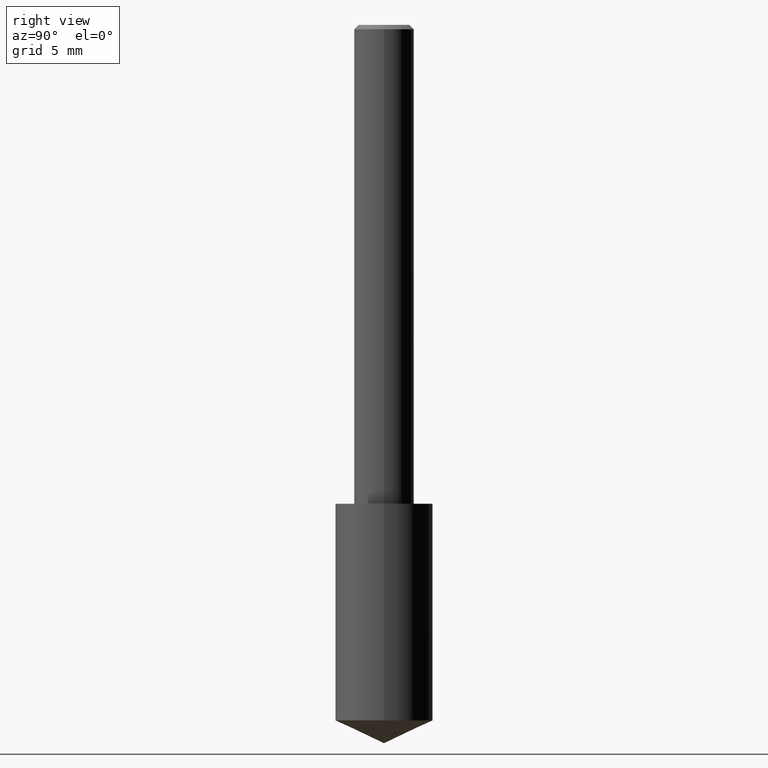
[diagram: clean part render]
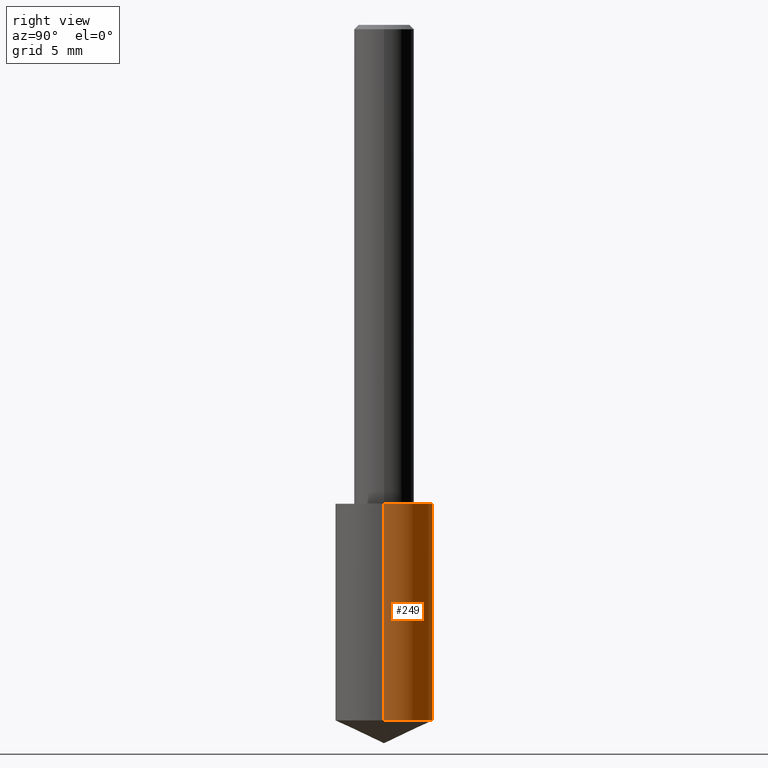
[diagram: same view with one face highlighted and labeled with its STEP entity id]
A machine part, right view. The second image highlights one B-rep face of the part: STEP entity #249.
In plain terms, the highlighted cylindrical surface (partial cylindrical patch) has radius 2.5908 mm, axis along (-0, 0, 1).
Its self-contained STEP definition (entity closure, byte-faithful):
#8 = DIRECTION ( 'NONE',  ( 1.000000000000000000, -6.982962677686266711E-15, 0.000000000000000000 ) ) ;
#9 = CARTESIAN_POINT ( 'NONE',  ( -0.1019999999999999796, -4.346401760155420845E-15, -1.452436618868190976 ) ) ;
#13 = ORIENTED_EDGE ( 'NONE', *, *, #211, .F. ) ;
#22 = AXIS2_PLACEMENT_3D ( 'NONE', #197, #220, #163 ) ;
#33 = DIRECTION ( 'NONE',  ( -2.445468806185136877E-29, 3.491481338843145188E-15, 1.000000000000000000 ) ) ;
#34 = DIRECTION ( 'NONE',  ( -2.445468806185136597E-29, 3.491481338843145583E-15, 1.000000000000000000 ) ) ;
#35 = DIRECTION ( 'NONE',  ( -2.445468806185136877E-29, 3.491481338843145188E-15, 1.000000000000000000 ) ) ;
#42 = EDGE_LOOP ( 'NONE', ( #122, #334, #152, #13 ) ) ;
#60 = CARTESIAN_POINT ( 'NONE',  ( 2.445468806185137438E-29, -3.491481338843146371E-15, -1.000000000000000222 ) ) ;
#65 = EDGE_CURVE ( 'NONE', #97, #67, #283, .T. ) ;
#67 = VERTEX_POINT ( 'NONE', #9 ) ;
#82 = CARTESIAN_POINT ( 'NONE',  ( 3.551888444403171231E-29, -5.071155350630722890E-15, -1.452436618868190976 ) ) ;
#97 = VERTEX_POINT ( 'NONE', #184 ) ;
#115 = CYLINDRICAL_SURFACE ( 'NONE', #139, 0.1019999999999999934 ) ;
#116 = LINE ( 'NONE', #140, #251 ) ;
#122 = ORIENTED_EDGE ( 'NONE', *, *, #65, .T. ) ;
#139 = AXIS2_PLACEMENT_3D ( 'NONE', #60, #34, #8 ) ;
#140 = CARTESIAN_POINT ( 'NONE',  ( 0.1019999999999999934, -4.203743531967145466E-15, -1.000000000000000222 ) ) ;
#152 = ORIENTED_EDGE ( 'NONE', *, *, #265, .F. ) ;
#158 = CIRCLE ( 'NONE', #22, 0.1019999999999999934 ) ;
#163 = DIRECTION ( 'NONE',  ( 1.000000000000000000, -6.982962677686266711E-15, 0.000000000000000000 ) ) ;
#182 = VECTOR ( 'NONE', #33, 39.37007874015748143 ) ;
#184 = CARTESIAN_POINT ( 'NONE',  ( 0.1019999999999999796, -5.783417543754722378E-15, -1.452436618868190976 ) ) ;
#194 = CARTESIAN_POINT ( 'NONE',  ( -0.1019999999999999934, -2.766727748367844721E-15, -1.000000000000000222 ) ) ;
#197 = CARTESIAN_POINT ( 'NONE',  ( 2.445468806185136877E-29, -3.491481338843145977E-15, -1.000000000000000222 ) ) ;
#201 = VERTEX_POINT ( 'NONE', #326 ) ;
#211 = EDGE_CURVE ( 'NONE', #97, #229, #116, .T. ) ;
#220 = DIRECTION ( 'NONE',  ( -2.445468806185136597E-29, 3.491481338843145583E-15, 1.000000000000000000 ) ) ;
#229 = VERTEX_POINT ( 'NONE', #267 ) ;
#235 = AXIS2_PLACEMENT_3D ( 'NONE', #82, #289, #276 ) ;
#244 = FACE_OUTER_BOUND ( 'NONE', #42, .T. ) ;
#249 = ADVANCED_FACE ( 'NONE', ( #244 ), #115, .T. ) ;
#251 = VECTOR ( 'NONE', #35, 39.37007874015748143 ) ;
#265 = EDGE_CURVE ( 'NONE', #229, #201, #158, .T. ) ;
#267 = CARTESIAN_POINT ( 'NONE',  ( 0.1019999999999999934, -4.203743531967145466E-15, -1.000000000000000222 ) ) ;
#276 = DIRECTION ( 'NONE',  ( 1.000000000000000000, -6.982962677686266711E-15, 0.000000000000000000 ) ) ;
#283 = CIRCLE ( 'NONE', #235, 0.1019999999999999934 ) ;
#289 = DIRECTION ( 'NONE',  ( -2.445468806185136597E-29, 3.491481338843145583E-15, 1.000000000000000000 ) ) ;
#308 = EDGE_CURVE ( 'NONE', #67, #201, #323, .T. ) ;
#323 = LINE ( 'NONE', #194, #182 ) ;
#326 = CARTESIAN_POINT ( 'NONE',  ( -0.1019999999999999934, -3.556564754261631994E-15, -1.000000000000000222 ) ) ;
#334 = ORIENTED_EDGE ( 'NONE', *, *, #308, .T. ) ;